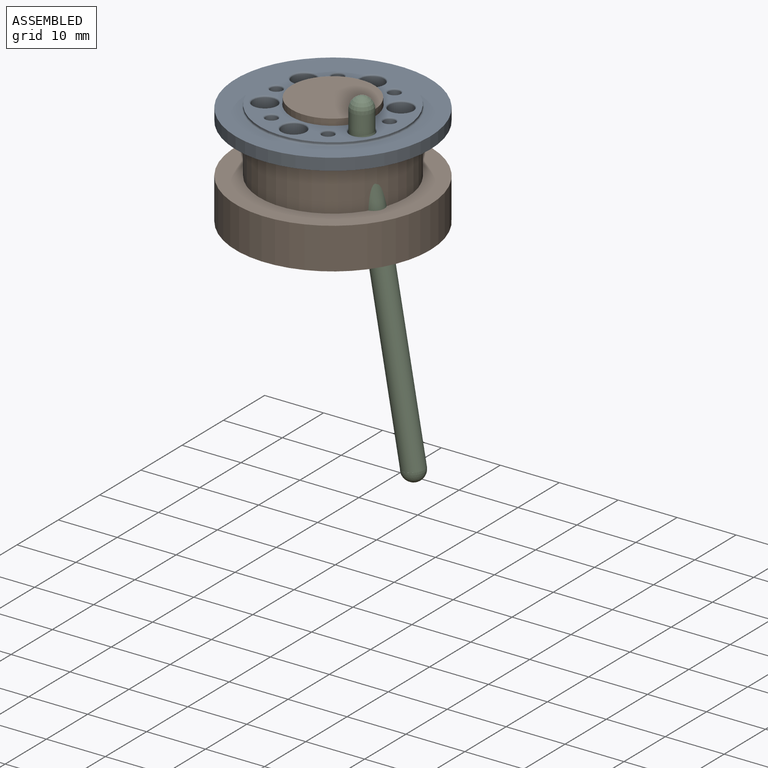
[diagram: assembled view]
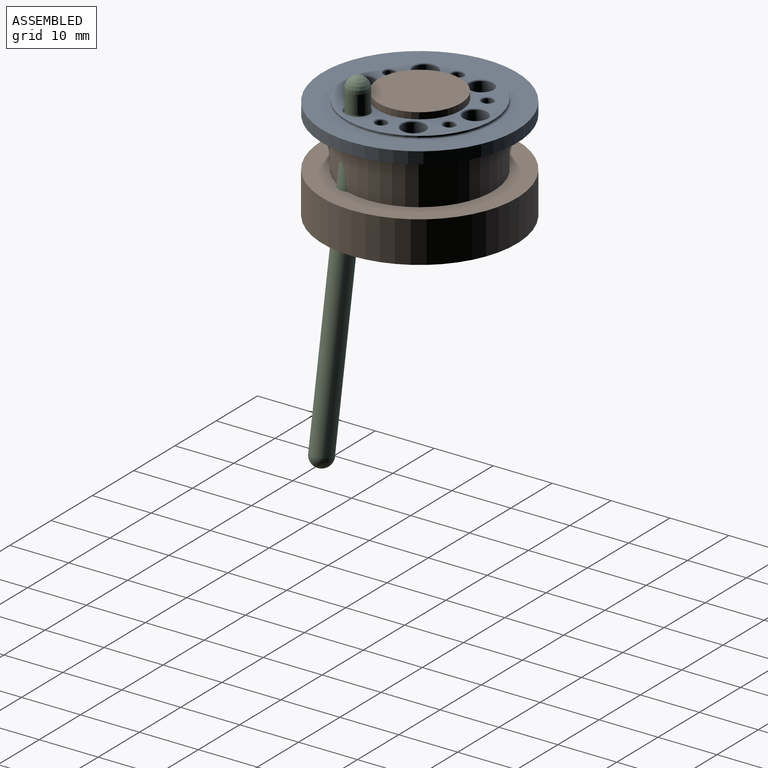
[diagram: assembled view, second angle]
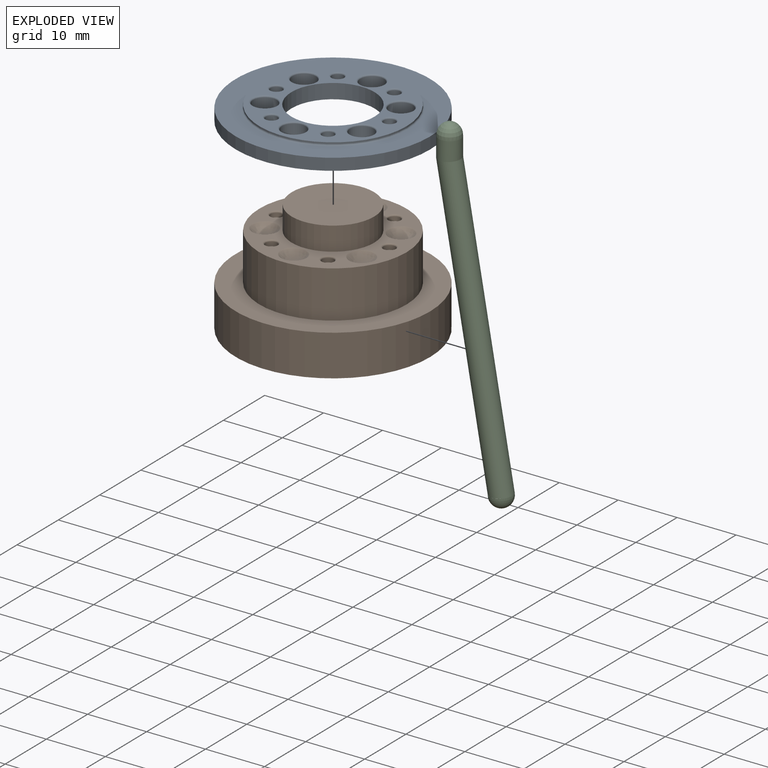
[diagram: exploded view]
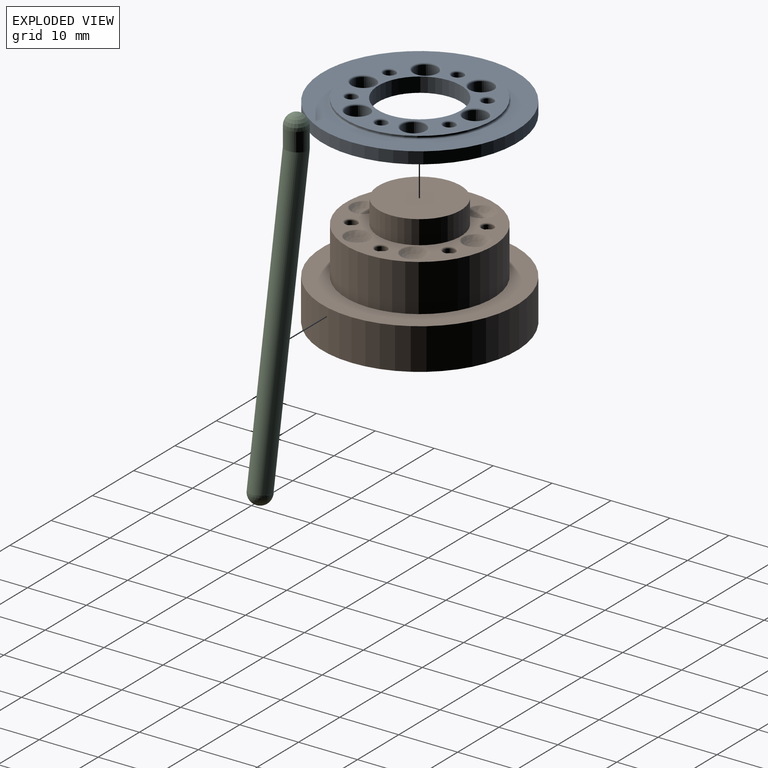
[diagram: exploded view, second angle]
ASSEMBLY  parts=3 mates=2
PART A: 31 faces, bbox 33x33x2.5 mm
  f0: cylinder r=16.5mm len=33mm, axis (0,0,-1), area 207.3mm2, adj f1,f2
  f1: plane 33x33mm, normal (0,0,1), area 344.6mm2, adj f0,f30
  f2: plane 33x33mm, normal (0,0,-1), area 604.9mm2, adj f0,f3,f4,f5,f6,f7,f8,f9
  f3: cylinder r=1mm len=2.25mm, axis (0,0,-1), area 14.1mm2, adj f2,f29
  f4: cylinder r=1mm len=2.25mm, axis (0,0,-1), area 14.1mm2, adj f2,f28
  f5: cylinder r=1mm len=2.25mm, axis (0,0,-1), area 14.1mm2, adj f2,f27
  f6: cylinder r=1mm len=2.25mm, axis (0,0,-1), area 14.1mm2, adj f2,f26
  f7: cylinder r=1mm len=2.25mm, axis (0,0,-1), area 14.1mm2, adj f2,f25
  f8: cylinder r=2mm len=4mm, axis (0,0,-1), area 28.3mm2, adj f2,f24
  f9: cylinder r=2mm len=4mm, axis (0,0,-1), area 28.3mm2, adj f2,f23
  f10: cylinder r=2mm len=4mm, axis (0,0,-1), area 28.3mm2, adj f2,f22
  f11: cylinder r=2mm len=4mm, axis (0,0,-1), area 28.3mm2, adj f2,f21
  f12: cylinder r=2mm len=4mm, axis (0,0,-1), area 28.3mm2, adj f2,f20
  f13: cylinder r=1mm len=2.25mm, axis (0,0,-1), area 14.1mm2, adj f2,f19
  f14: cylinder r=2mm len=4mm, axis (0,0,-1), area 28.3mm2, adj f2,f18
  f15: cylinder r=7.05mm len=14.1mm, axis (0,0,-1), area 110.7mm2, adj f2,f17
  f16: cylinder r=12.5mm len=25mm, axis (0,0,-1), area 19.6mm2, adj f17,f30
  f17: plane 25x25mm, normal (0,0,1), area 209.9mm2, adj f15,f16,f18,f19,f20,f21,f22,f23
  f18: torus R=2.25mm, axis (0,0,1), area 5.2mm2, adj f14,f17
  f19: torus R=1.25mm, axis (0,0,1), area 2.7mm2, adj f13,f17
  f20: torus R=2.25mm, axis (0,0,1), area 5.2mm2, adj f12,f17
  f21: torus R=2.25mm, axis (0,0,1), area 5.2mm2, adj f11,f17
  f22: torus R=2.25mm, axis (0,0,1), area 5.2mm2, adj f10,f17
  f23: torus R=2.25mm, axis (0,0,1), area 5.2mm2, adj f9,f17
  f24: torus R=2.25mm, axis (0,0,1), area 5.2mm2, adj f8,f17
  f25: torus R=1.25mm, axis (0,0,1), area 2.7mm2, adj f7,f17
  f26: torus R=1.25mm, axis (0,0,1), area 2.7mm2, adj f6,f17
  f27: torus R=1.25mm, axis (0,0,1), area 2.7mm2, adj f5,f17
  f28: torus R=1.25mm, axis (0,0,1), area 2.7mm2, adj f4,f17
  f29: torus R=1.25mm, axis (0,0,1), area 2.7mm2, adj f3,f17
  f30: torus R=12.75mm, axis (0,0,1), area 31.1mm2, adj f1,f16
PART B: 73 faces, bbox 33x33x21 mm
  f0: cylinder r=16.5mm len=33mm, axis (0,0,-1), area 725.7mm2, adj f1,f2
  f1: plane 33x33mm, normal (0,0,1), area 364.4mm2, adj f0,f6
  f2: plane 33x33mm, normal (0,0,-1), area 194.8mm2, adj f0,f3
  f3: cylinder r=14.5mm len=29mm, axis (0,0,-1), area 455.5mm2, adj f2,f4
  f4: plane 29x29mm, normal (0,0,-1), area 169.6mm2, adj f3,f25
  f5: plane 25x25mm, normal (0,0,1), area 212.1mm2, adj f6,f42,f55,f56,f57,f58,f59,f60
  f6: cylinder r=12.5mm len=25mm, axis (0,0,-1), area 628.3mm2, adj f1,f5
  f7: cylinder r=1mm len=2mm, axis (0,0,-1), area 4.4mm2, adj f54,f55
  f8: cylinder r=1mm len=2mm, axis (0,0,-1), area 4.4mm2, adj f53,f56
  f9: cylinder r=1mm len=2mm, axis (0,0,-1), area 4.4mm2, adj f52,f57
  f10: cylinder r=1mm len=2mm, axis (0,0,-1), area 4.4mm2, adj f51,f58
  f11: cylinder r=1mm len=2mm, axis (0,0,-1), area 4.4mm2, adj f50,f59
  f12: cylinder r=1mm len=2mm, axis (0,0,-1), area 4.4mm2, adj f49,f60
  f13: cylinder r=2mm len=4mm, axis (0,0,-1), area 4.1mm2, adj f26,f40
  f14: cylinder r=2mm len=4mm, axis (0,0,-1), area 4.1mm2, adj f26,f39
  f15: cylinder r=2mm len=4mm, axis (0,0,-1), area 4.1mm2, adj f26,f38
  f16: cylinder r=2mm len=4mm, axis (0,0,-1), area 4.1mm2, adj f26,f37
  f17: cylinder r=2mm len=4mm, axis (0,0,-1), area 4.1mm2, adj f26,f36
  f18: cylinder r=2mm len=4mm, axis (0,0,-1), area 4.1mm2, adj f26,f35
  f19: cylinder r=1mm len=2mm, axis (0,0,-1), area 2.1mm2, adj f26,f34
  f20: cylinder r=1mm len=2mm, axis (0,0,-1), area 2.1mm2, adj f26,f33
  f21: cylinder r=1mm len=2mm, axis (0,0,-1), area 2.1mm2, adj f26,f32
  f22: cylinder r=1mm len=2mm, axis (0,0,-1), area 2.1mm2, adj f26,f31
  f23: cylinder r=1mm len=2mm, axis (0,0,-1), area 2.1mm2, adj f26,f30
  f24: cylinder r=1mm len=2mm, axis (0,0,-1), area 2.1mm2, adj f26,f29
  f25: cylinder r=12.5mm len=25mm, axis (0,0,-1), area 25.7mm2, adj f4,f26
  f26: plane 25x25mm, normal (0,0,-1), area 242.7mm2, adj f13,f14,f15,f16,f17,f18,f19,f20
  f27: plane 14x14mm, normal (0,0,-1), area 153.9mm2, adj f28
  f28: cylinder r=7mm len=14mm, axis (0,0,-1), area 293.5mm2, adj f26,f27
  f29: plane 2x2mm, normal (0,0,-1), area 3.1mm2, adj f24
  f30: plane 2x2mm, normal (0,0,-1), area 3.1mm2, adj f23
  f31: plane 2x2mm, normal (0,0,-1), area 3.1mm2, adj f22
  f32: plane 2x2mm, normal (0,0,-1), area 3.1mm2, adj f21
  f33: plane 2x2mm, normal (0,0,-1), area 3.1mm2, adj f20
  f34: plane 2x2mm, normal (0,0,-1), area 3.1mm2, adj f19
  f35: plane 4x4mm, normal (0,0,-1), area 12.6mm2, adj f18
  f36: plane 4x4mm, normal (0,0,-1), area 12.6mm2, adj f17
  f37: plane 4x4mm, normal (0,0,-1), area 12.6mm2, adj f16
  f38: plane 4x4mm, normal (0,0,-1), area 12.6mm2, adj f15
  f39: plane 4x4mm, normal (0,0,-1), area 12.6mm2, adj f14
  f40: plane 4x4mm, normal (0,0,-1), area 12.6mm2, adj f13
  f41: plane 14x14mm, normal (0,0,1), area 153.9mm2, adj f42
  f42: cylinder r=7mm len=14mm, axis (0,0,-1), area 175.9mm2, adj f5,f41
  f43: plane 0.35x0.35mm, normal (0,0,1), area 0.1mm2, adj f72
  f44: plane 0.35x0.35mm, normal (0,0,1), area 0.1mm2, adj f71
  f45: plane 0.35x0.35mm, normal (0,0,1), area 0.1mm2, adj f70
  f46: plane 0.35x0.35mm, normal (0,0,1), area 0.1mm2, adj f69
  f47: plane 0.35x0.35mm, normal (0,0,1), area 0.1mm2, adj f68
  f48: plane 0.35x0.35mm, normal (0,0,1), area 0.1mm2, adj f67
  f49: plane 2x2mm, normal (0,0,1), area 3.1mm2, adj f12
  f50: plane 2x2mm, normal (0,0,1), area 3.1mm2, adj f11
  f51: plane 2x2mm, normal (0,0,1), area 3.1mm2, adj f10
  f52: plane 2x2mm, normal (0,0,1), area 3.1mm2, adj f9
  f53: plane 2x2mm, normal (0,0,1), area 3.1mm2, adj f8
  f54: plane 2x2mm, normal (0,0,1), area 3.1mm2, adj f7
  f55: torus R=1.25mm, axis (0,0,1), area 2.7mm2, adj f5,f7
  f56: torus R=1.25mm, axis (0,0,1), area 2.7mm2, adj f5,f8
  f57: torus R=1.25mm, axis (0,0,1), area 2.7mm2, adj f5,f9
  f58: torus R=1.25mm, axis (0,0,1), area 2.7mm2, adj f5,f10
  f59: torus R=1.25mm, axis (0,0,1), area 2.7mm2, adj f5,f11
  f60: torus R=1.25mm, axis (0,0,1), area 2.7mm2, adj f5,f12
  f61: torus R=2.25mm, axis (0,0,1), area 2.9mm2, adj f5,f67
  f62: torus R=2.25mm, axis (0,0,1), area 2.9mm2, adj f5,f68
  f63: torus R=2.25mm, axis (0,0,1), area 2.9mm2, adj f5,f69
  f64: torus R=2.25mm, axis (0,0,1), area 2.9mm2, adj f5,f70
  f65: torus R=2.25mm, axis (0,0,1), area 2.9mm2, adj f5,f71
  f66: torus R=2.25mm, axis (0,0,1), area 2.9mm2, adj f5,f72
  f67: bspline ~4.12x4.12mm, area 15.9mm2, adj f48,f61
  f68: bspline ~4.12x4.12mm, area 15.9mm2, adj f47,f62
  f69: bspline ~4.12x4.12mm, area 15.9mm2, adj f46,f63
  f70: bspline ~4.12x4.12mm, area 15.9mm2, adj f45,f64
  f71: bspline ~4.12x4.12mm, area 15.9mm2, adj f44,f65
  f72: bspline ~4.12x4.12mm, area 15.9mm2, adj f43,f66
PART C: 5 faces, bbox 12.5x3.8x54.6 mm
  f0: cylinder r=1.88mm len=50.28mm, axis (-0.17,0,0.98), area 589.9mm2, adj f1,f3
  f1: cylinder r=1.88mm len=3.75mm, axis (0,0,1), area 38.5mm2, adj f0,f2
  f2: revolved ~3.75x1.88mm, area 0mm2, adj f1
  f3: plane 3.78x3.76mm, normal (-0.09,0,1), area 0.1mm2, adj f0,f4
  f4: sphere r=1.9mm, area 24.6mm2, adj f3
PLACE A t=(0.62,0,-18.57)mm
PLACE B t=(0.62,0,0)mm
PLACE C t=(8.85,-4.75,-31.6)mm
MATE slider A.f15 <-> B.f28  axis (0,0,1) through (0.62,0,17.93)mm
MATE fastened C.f1 <-> A.f9  axis (0,0,1) through (8.85,-4.75,17.68)mm
